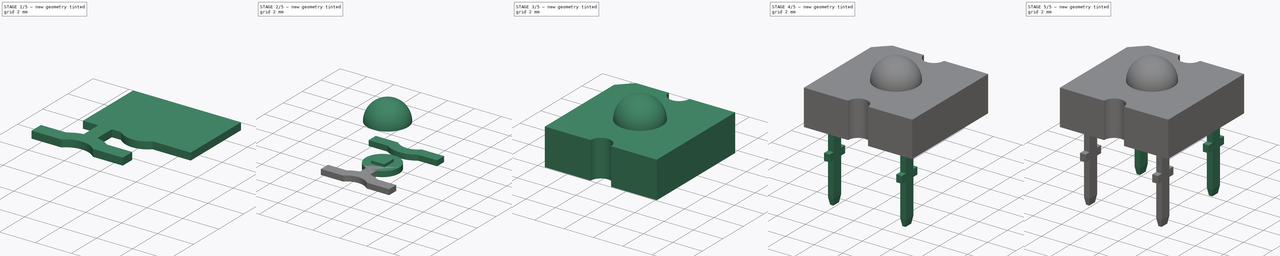
[diagram: build sequence overview — one tinted view per stage of 5, left to right]
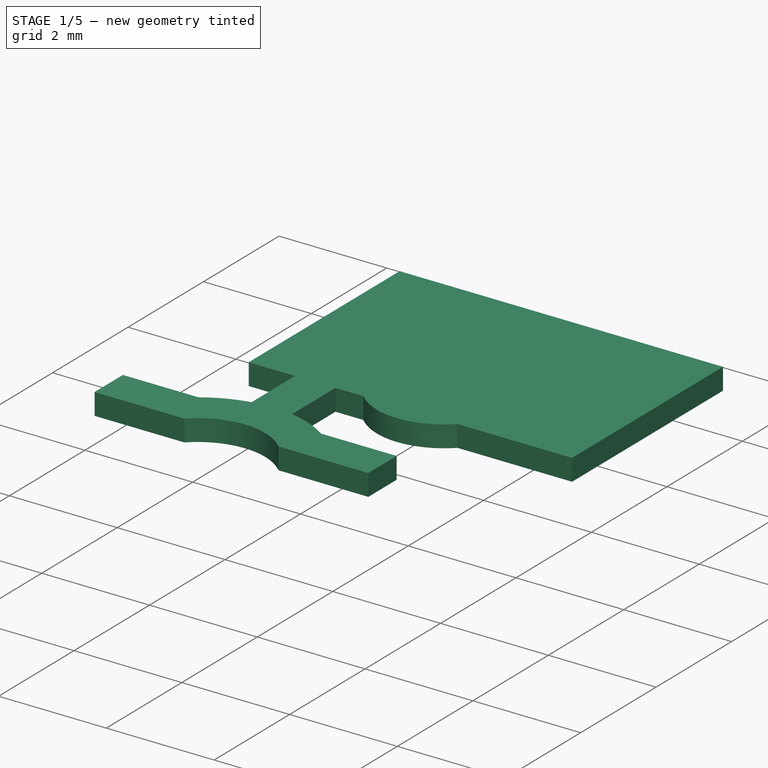
[diagram: stage 1 of 5 — iso view after this stage's code; geometry added in this stage tinted green]
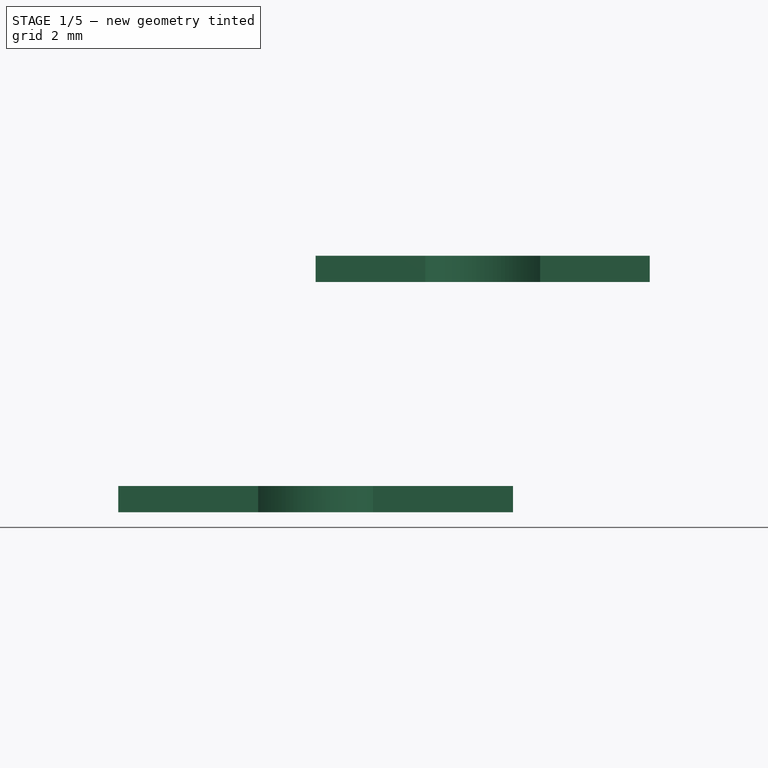
[diagram: stage 1 of 5 — front view after this stage's code; geometry added in this stage tinted green]
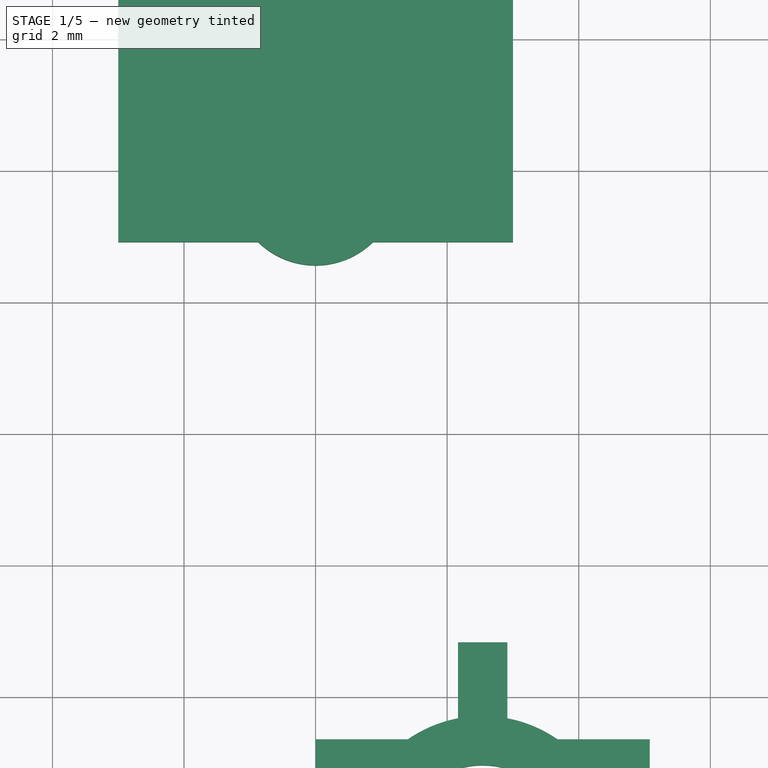
[diagram: stage 1 of 5 — top view after this stage's code; geometry added in this stage tinted green]
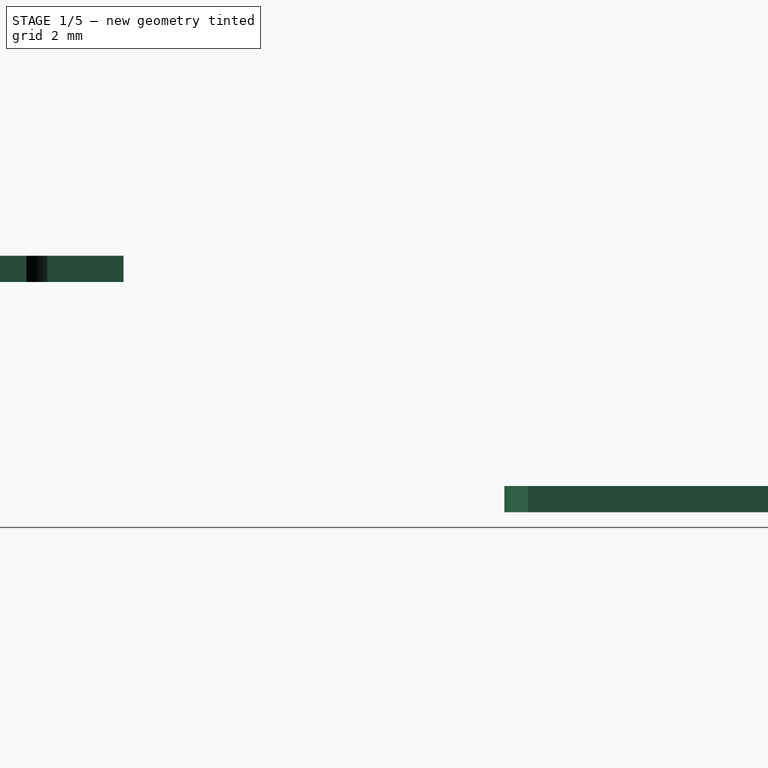
[diagram: stage 1 of 5 — right view after this stage's code; geometry added in this stage tinted green]
FCSTD DOCUMENT  (FreeCAD 0.16R6712 (Git))
Label: test
License: All rights reserved
LicenseURL: http://en.wikipedia.org/wiki/All_rights_reserved
objects: Part::Extrusion×12, Part::Cut×10, Part::MultiFuse×10, Part::Box×9, Part::Cylinder×7, Sketcher::SketchObject×4, PartDesign::Pad×4, Part::Part2DObjectPython×4, Part::Sphere×1, Part::Fuse×1
note: 66 computed .brp shape members not serialized (recipe doc carries the construction recipe); baked Part::Feature solids carry a one-line shape summary decoded from their .brp

FEATURE [Part::Cylinder] Cylinder004  label="C_cut"
  Angle = 360
  Height = 0.4
  Placement = pos=(0,3.81,0) rot=(0,0,1;0rad)
  Radius = 1.25
FEATURE [Part::Box] Box005  label="cut_cube001"
  Height = 0.4
  Length = 6
  Placement = pos=(-3,2.915,0) rot=(0,0,1;0rad)
  Width = 4
FEATURE [Part::Box] Box006  label="C_chip002"
  Height = 0.4
  Length = 5.08
  Placement = pos=(-2.54,2.165,0) rot=(0,0,1;0rad)
  Width = 0.75
FEATURE [Part::Cylinder] Cylinder005  label="C_cylinder001"
  Angle = 360
  Height = 0.4
  Placement = pos=(0,3.81,0) rot=(0,0,1;0rad)
  Radius = 2
FEATURE [Part::Cylinder] Cylinder006  label="C_cut001"
  Angle = 360
  Height = 0.4
  Placement = pos=(0,3.81,0) rot=(0,0,1;0rad)
  Radius = 1.25
FEATURE [Part::Cut] Cut007
  Base = -> Box006
  Tool = -> Cylinder006
FEATURE [Part::Cut] Cut008
  Base = -> Cylinder005
  Tool = -> Cylinder006
FEATURE [Part::Box] Box007  label="cut_cube002"
  Height = 0.4
  Length = 6
  Placement = pos=(-3,2.915,0) rot=(0,0,1;0rad)
  Width = 4
FEATURE [Part::Cut] Cut009
  Base = -> Cut008
  Tool = -> Box007
FEATURE [Part::MultiFuse] Fusion010  label="A_chip003"
  Placement = pos=(2.54,-2.54,3.5) rot=(0,0,1;3.14159rad)
  Shapes = -> [Cut007,Cut009]
FEATURE [Part::Box] Box008  label="A_chip_connect"
  Height = 0.4
  Length = 0.75
  Placement = pos=(2.165,-4.73,3.5) rot=(0,0,1;0rad)
  Width = 1.5
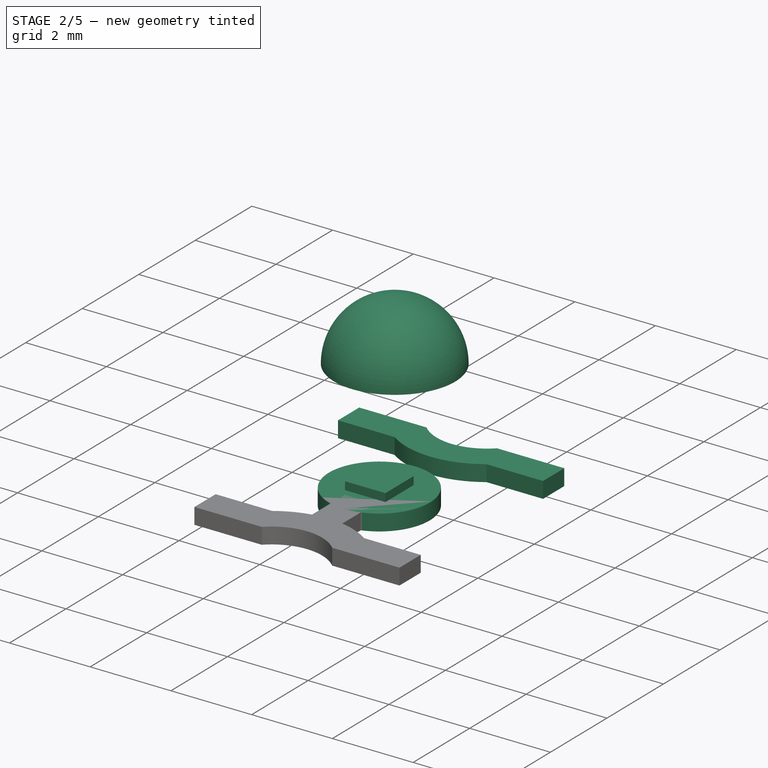
[diagram: stage 2 of 5 — iso view after this stage's code; geometry added in this stage tinted green]
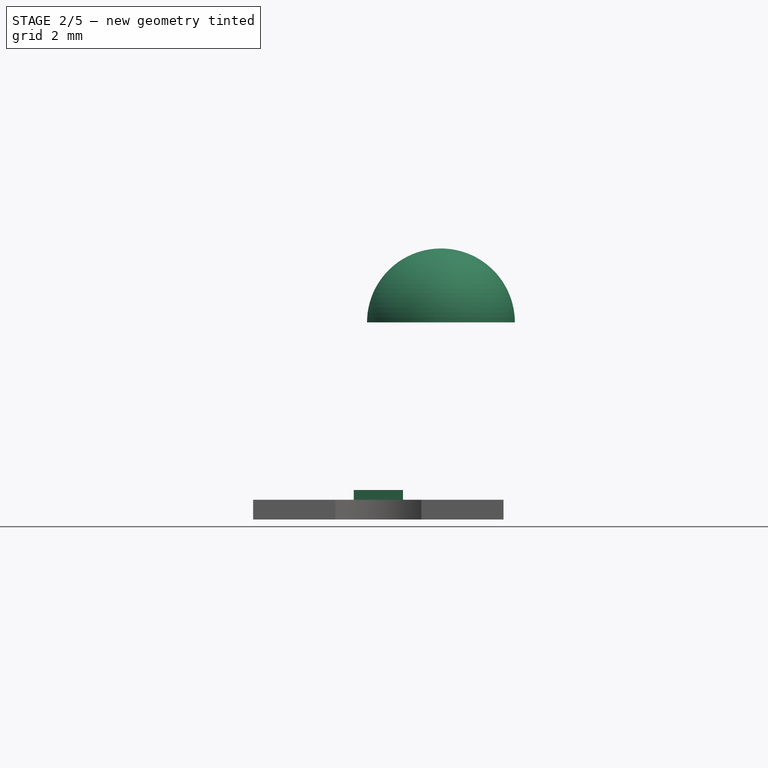
[diagram: stage 2 of 5 — front view after this stage's code; geometry added in this stage tinted green]
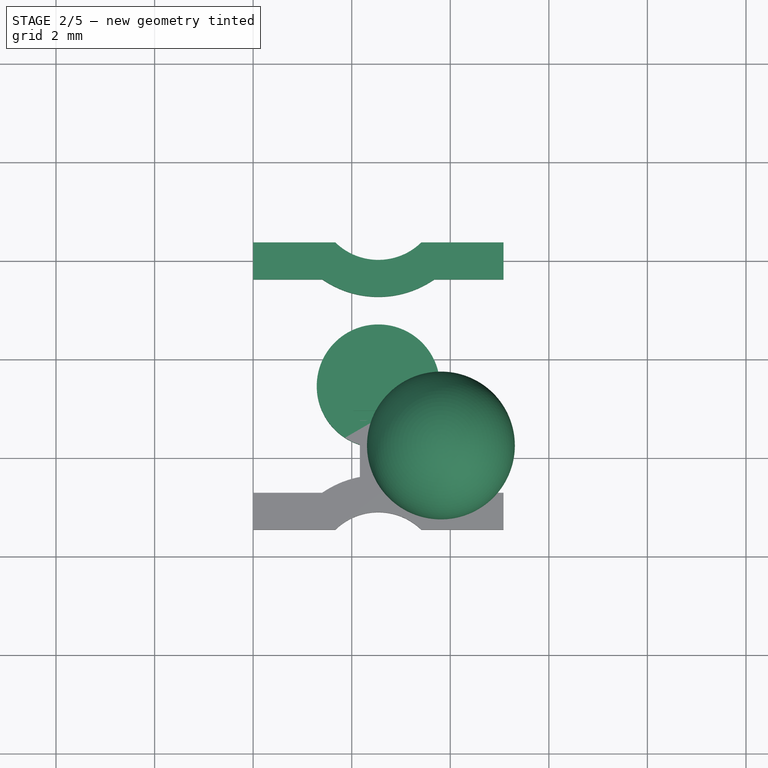
[diagram: stage 2 of 5 — top view after this stage's code; geometry added in this stage tinted green]
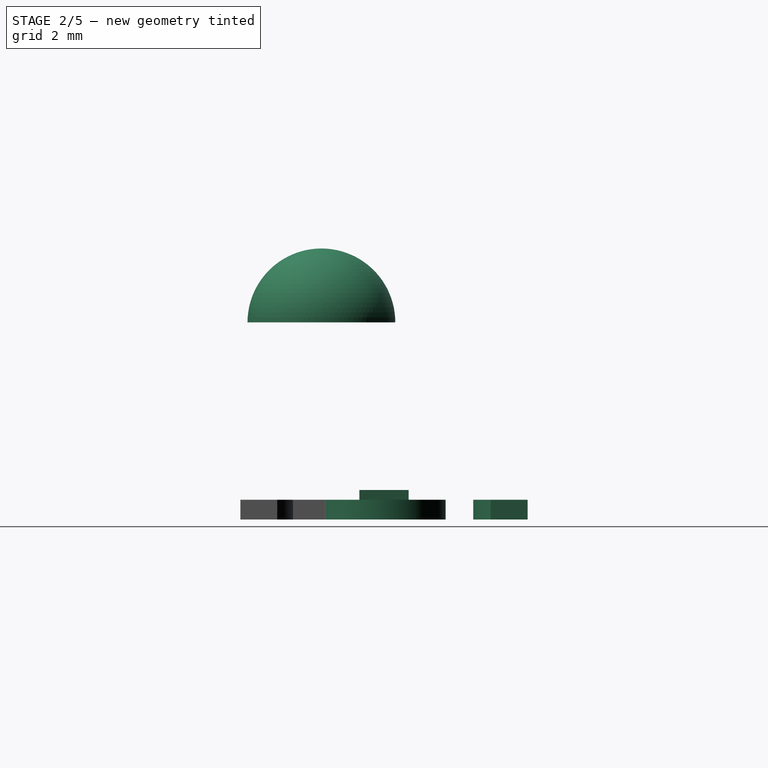
[diagram: stage 2 of 5 — right view after this stage's code; geometry added in this stage tinted green]
FEATURE [Part::Sphere] Sphere  label="LED_lens"
  Angle1 = -90
  Angle2 = 90
  Angle3 = 360
  Radius = 1.5
FEATURE [Part::Box] Box002  label="Lens_cut"
  Height = 4
  Length = 4
  Placement = pos=(-2,-2,-4) rot=(0,0,1;0rad)
  Width = 4
FEATURE [Part::Cut] Cut003  label="LED_lens001"
  Base = -> Sphere
  Placement = pos=(3.81,-3.81,7.5) rot=(0,0,1;0rad)
  Tool = -> Box002
FEATURE [Part::Cylinder] Cylinder002  label="chip_base"
  Angle = 360
  Height = 0.4
  Placement = pos=(2.54,-2.54,3.5) rot=(0,0,1;0rad)
  Radius = 1.25
FEATURE [Part::Box] Box003  label="LED_chip"
  Height = 0.2
  Length = 1
  Placement = pos=(2.04,-3.04,3.9) rot=(0,0,1;0rad)
  Width = 1
FEATURE [Part::Box] Box004  label="C_chip"
  Height = 0.4
  Length = 5.08
  Placement = pos=(-2.54,2.165,0) rot=(0,0,1;0rad)
  Width = 0.75
FEATURE [Part::Cylinder] Cylinder003  label="C_cylinder"
  Angle = 360
  Height = 0.4
  Placement = pos=(0,3.81,0) rot=(0,0,1;0rad)
  Radius = 2
FEATURE [Part::Cut] Cut004
  Base = -> Box004
  Tool = -> Cylinder004
FEATURE [Part::Cut] Cut005
  Base = -> Cylinder003
  Tool = -> Cylinder004
FEATURE [Part::Cut] Cut006
  Base = -> Cut005
  Tool = -> Box005
FEATURE [Part::MultiFuse] Fusion009  label="C_chip001"
  Placement = pos=(2.54,-2.54,3.5) rot=(0,0,1;0rad)
  Shapes = -> [Cut004,Cut006]
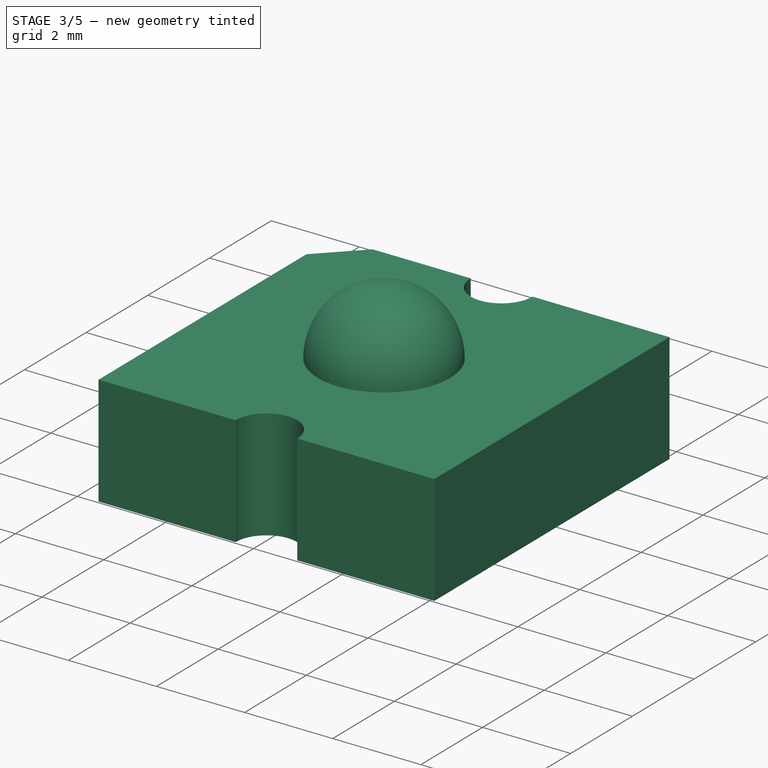
[diagram: stage 3 of 5 — iso view after this stage's code; geometry added in this stage tinted green]
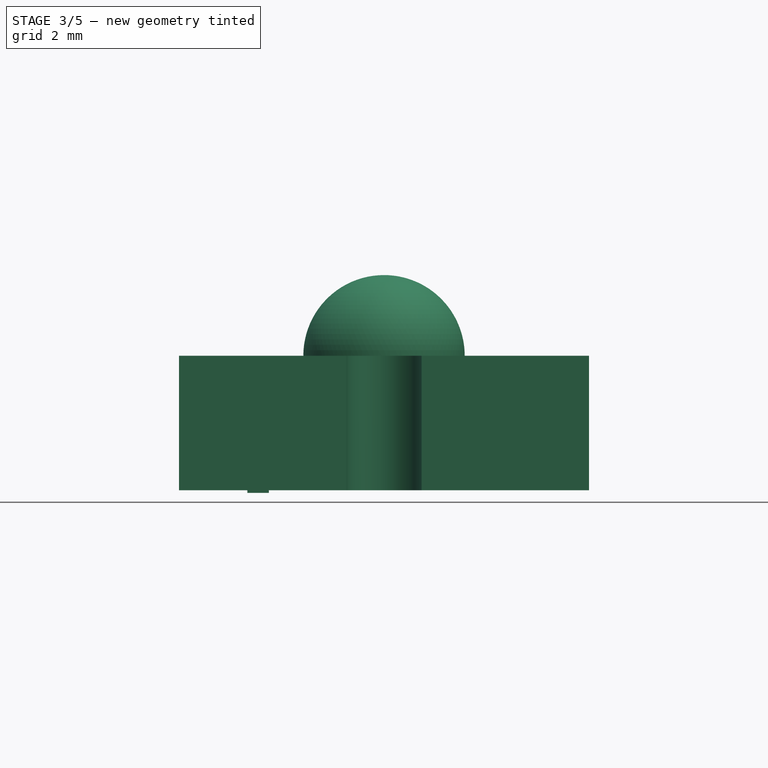
[diagram: stage 3 of 5 — front view after this stage's code; geometry added in this stage tinted green]
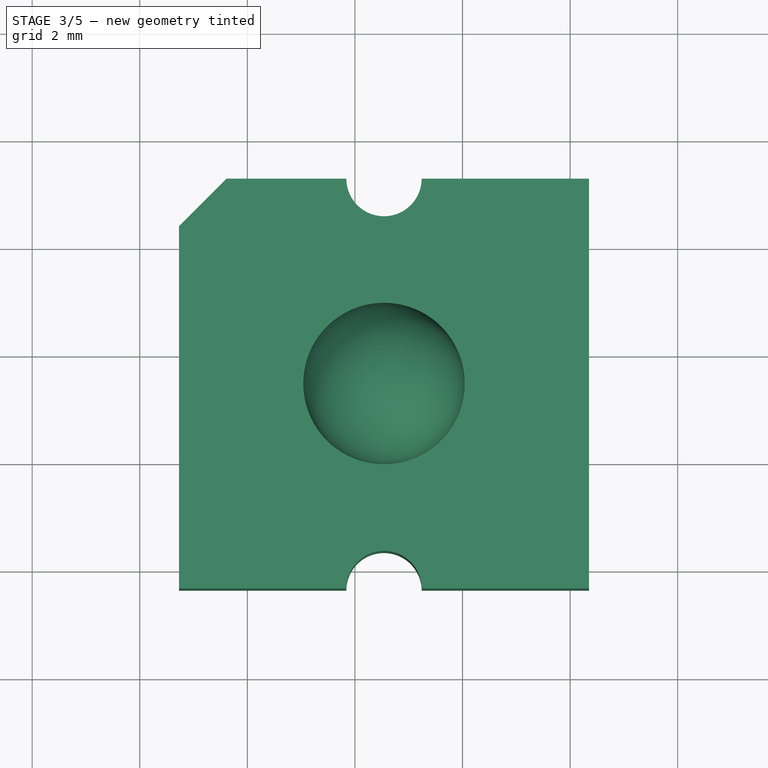
[diagram: stage 3 of 5 — top view after this stage's code; geometry added in this stage tinted green]
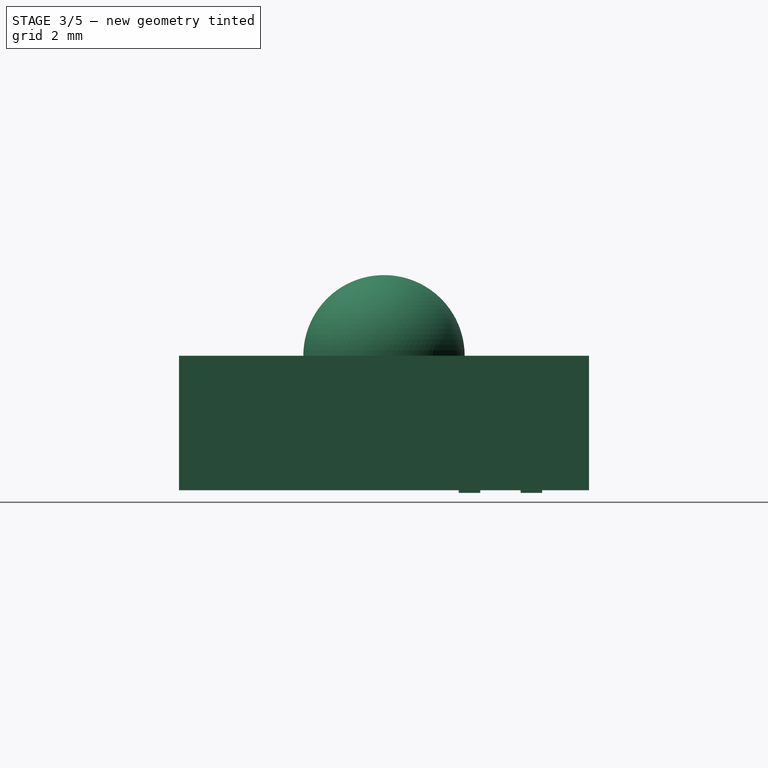
[diagram: stage 3 of 5 — right view after this stage's code; geometry added in this stage tinted green]
FEATURE [Part::Box] Box  label="LED_head"
  Height = 2.5
  Length = 7.62
  Width = 7.62
FEATURE [Part::Box] Box001  label="cut_cube"
  Height = 2.5
  Length = 1.25
  Placement = pos=(7.62,6.73612,0) rot=(0,0,1;0.785398rad)
  Width = 1.25
FEATURE [Part::Cut] Cut  label="Trim_cut"
  Base = -> Box
  Placement = pos=(7.62,-7.62,5) rot=(0,0,1;1.5708rad)
  Tool = -> Box001
FEATURE [Part::Part2DObjectPython] Rectangle003  # Draft 2D object (typed FeaturePython)
  ChamferSize = 0
  Columns = 1
  FilletRadius = 0
  Height = 0.5
  Length = 0.4
  MakeFace = true
  Placement = pos=(0,0,2.45) rot=(1,0,0;1.5708rad)
  Rows = 1
FEATURE [Part::Extrusion] Extrude010  label="Stopper_007"
  Base = -> Rectangle003
  Dir = (0,0.4,0)
  Solid = false
FEATURE [Part::Extrusion] Extrude011  label="Stopper_008"
  Base = -> Rectangle003
  Dir = (0,-0.4,0)
  Placement = pos=(0,-0.75,0) rot=(0,0,1;0rad)
  Solid = false
FEATURE [Part::Cylinder] Cylinder  label="Cut_LED_left"
  Angle = 360
  Height = 10
  Placement = pos=(3.81,0,0) rot=(0,0,1;0rad)
  Radius = 0.7
FEATURE [Part::Cylinder] Cylinder001  label="Cut_LED_right"
  Angle = 360
  Height = 10
  Placement = pos=(3.81,-7.62,0) rot=(0,0,1;0rad)
  Radius = 0.7
FEATURE [Part::Cut] Cut001
  Base = -> Cut
  Tool = -> Cylinder
FEATURE [Part::Cut] Cut002  label="LED_head001"
  Base = -> Cut001
  Tool = -> Cylinder001
FEATURE [Part::Fuse] Fusion008  label="LED_head002"
  Base = -> Cut002
  Placement = pos=(-1.27,1.27,-2.5) rot=(0,0,1;0rad)
  Tool = -> Cut003
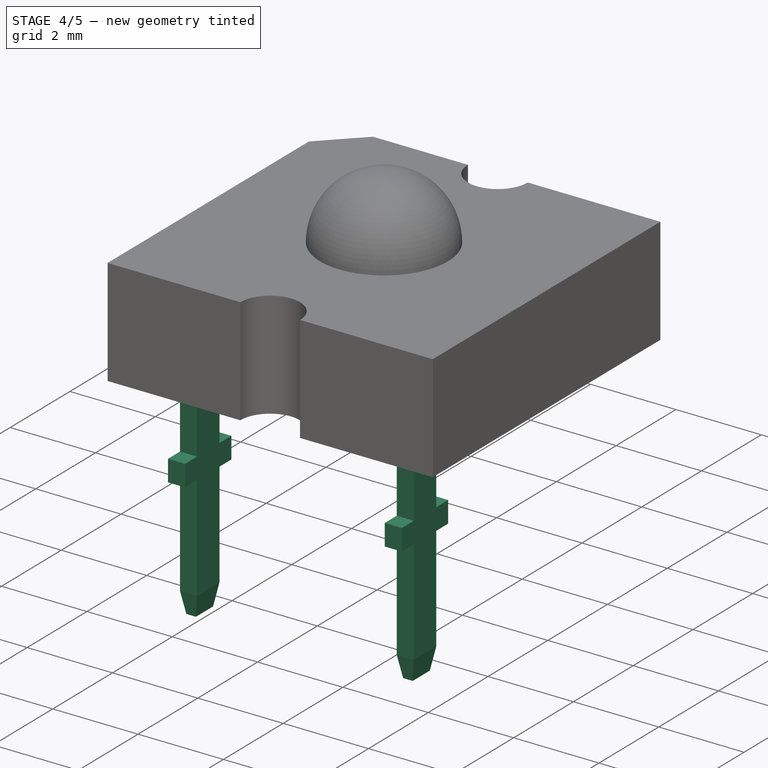
[diagram: stage 4 of 5 — iso view after this stage's code; geometry added in this stage tinted green]
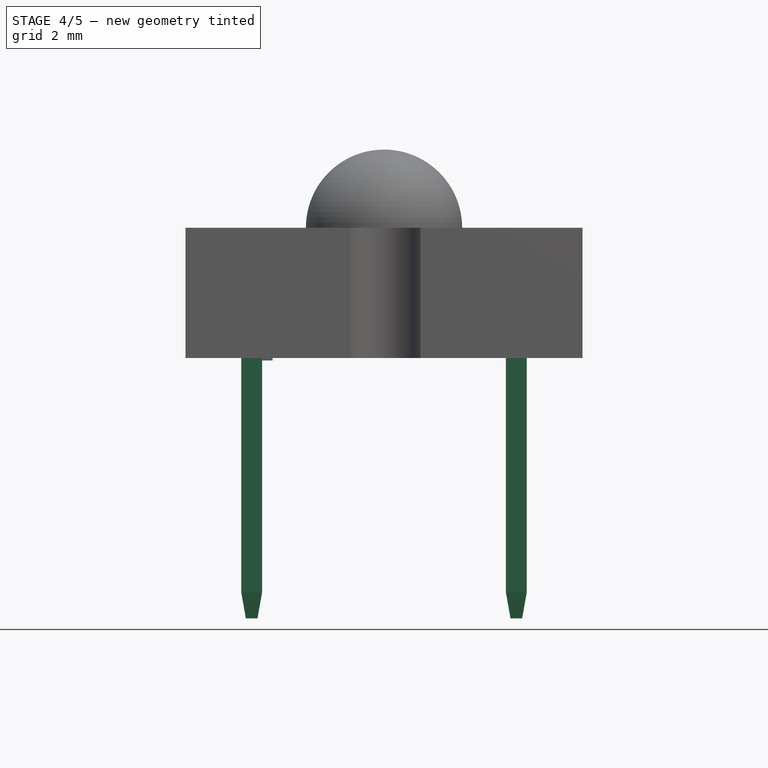
[diagram: stage 4 of 5 — front view after this stage's code; geometry added in this stage tinted green]
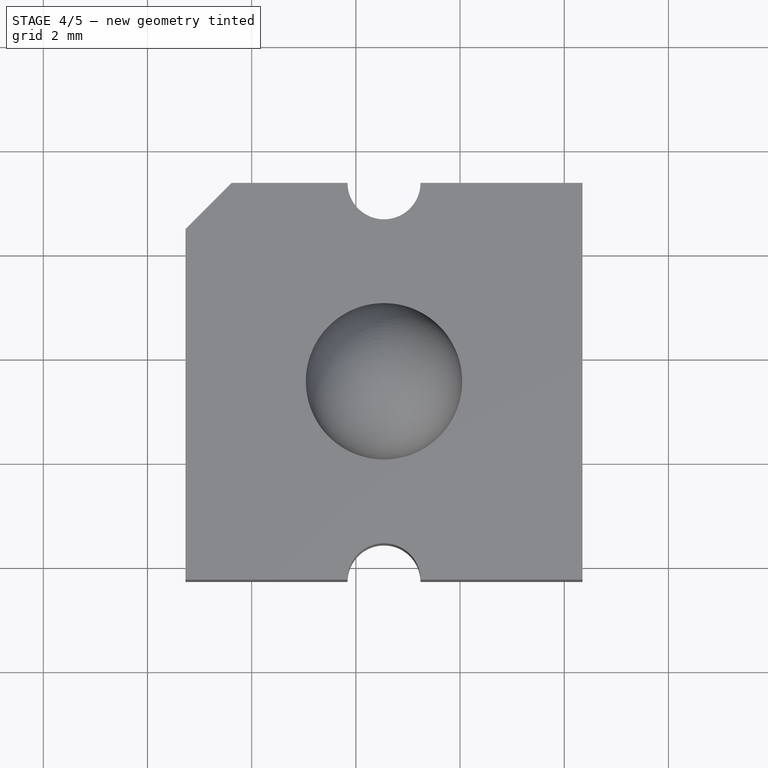
[diagram: stage 4 of 5 — top view after this stage's code; geometry added in this stage tinted green]
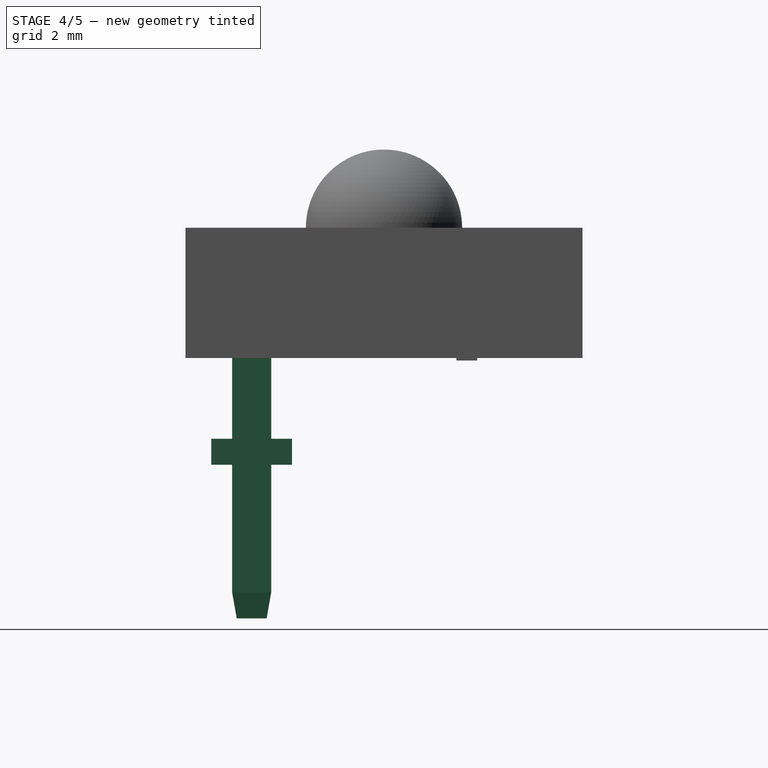
[diagram: stage 4 of 5 — right view after this stage's code; geometry added in this stage tinted green]
FEATURE [Part::Extrusion] Extrude005  label="Stopper_004"
  Base = -> Rectangle001
  Dir = (0,-0.4,0)
  Placement = pos=(0,-0.75,0) rot=(0,0,1;0rad)
  Solid = false
FEATURE [Sketcher::SketchObject] Sketch002
  sketch-geometry (4):
    g0: LineSegment StartX=0.4 StartY=0 StartZ=0 EndX=0 EndY=0 EndZ=0
    g1: LineSegment StartX=0 StartY=0 StartZ=0 EndX=0 EndY=-0.75 EndZ=0
    g2: LineSegment StartX=0 StartY=-0.75 StartZ=0 EndX=0.4 EndY=-0.75 EndZ=0
    g3: LineSegment StartX=0.4 StartY=-0.75 StartZ=0 EndX=0.4 EndY=0 EndZ=0
  constraints (10):
    c: Coincident(g0,g1)
    c: Coincident(g1,g2)
    c: Coincident(g2,g3)
    c: Coincident(g3,g0)
    c: Horizontal(g0)
    c: Horizontal(g2)
    c: Vertical(g1)
    c: Vertical(g3)
    c: Distance(g0) = 0.4
    c: Distance(g1) = 0.75
FEATURE [PartDesign::Pad] Pad002  label="Pad_base002"
  Length = 5.9
  Length2 = 100
  Sketch = -> Sketch002
  Type = 0
FEATURE [Part::Extrusion] Extrude006  label="Pad_foot002"
  Base = -> Sketch002
  Dir = (0,0,-0.5)
  Solid = true
  TaperAngle = -10
FEATURE [Part::MultiFuse] Fusion004  label="Pin_no_stopper002"
  Shapes = -> [Extrude006,Pad002]
FEATURE [Part::Part2DObjectPython] Rectangle002  # Draft 2D object (typed FeaturePython)
  ChamferSize = 0
  Columns = 1
  FilletRadius = 0
  Height = 0.5
  Length = 0.4
  MakeFace = true
  Placement = pos=(0,0,2.45) rot=(1,0,0;1.5708rad)
  Rows = 1
FEATURE [Part::Extrusion] Extrude007  label="Stopper_005"
  Base = -> Rectangle002
  Dir = (0,0.4,0)
  Solid = false
FEATURE [Part::Extrusion] Extrude008  label="Stopper_006"
  Base = -> Rectangle002
  Dir = (0,-0.4,0)
  Placement = pos=(0,-0.75,0) rot=(0,0,1;0rad)
  Solid = false
FEATURE [Part::MultiFuse] Fusion005  label="A_2"
  Placement = pos=(4.88,-4.705,-2) rot=(0,0,1;0rad)
  Shapes = -> [Extrude008,Extrude007,Fusion004]
FEATURE [Sketcher::SketchObject] Sketch003
  sketch-geometry (4):
    g0: LineSegment StartX=0.4 StartY=0 StartZ=0 EndX=0 EndY=0 EndZ=0
    g1: LineSegment StartX=0 StartY=0 StartZ=0 EndX=0 EndY=-0.75 EndZ=0
    g2: LineSegment StartX=0 StartY=-0.75 StartZ=0 EndX=0.4 EndY=-0.75 EndZ=0
    g3: LineSegment StartX=0.4 StartY=-0.75 StartZ=0 EndX=0.4 EndY=0 EndZ=0
  constraints (10):
    c: Coincident(g0,g1)
    c: Coincident(g1,g2)
    c: Coincident(g2,g3)
    c: Coincident(g3,g0)
    c: Horizontal(g0)
    c: Horizontal(g2)
    c: Vertical(g1)
    c: Vertical(g3)
    c: Distance(g0) = 0.4
    c: Distance(g1) = 0.75
FEATURE [PartDesign::Pad] Pad003  label="Pad_base003"
  Length = 5.9
  Length2 = 100
  Sketch = -> Sketch003
  Type = 0
FEATURE [Part::Extrusion] Extrude009  label="Pad_foot003"
  Base = -> Sketch003
  Dir = (0,0,-0.5)
  Solid = true
  TaperAngle = -10
FEATURE [Part::MultiFuse] Fusion006  label="Pin_no_stopper003"
  Shapes = -> [Extrude009,Pad003]
FEATURE [Part::MultiFuse] Fusion007  label="A_1"
  Placement = pos=(-0.2,-4.705,-2) rot=(0,0,1;0rad)
  Shapes = -> [Extrude011,Extrude010,Fusion006]
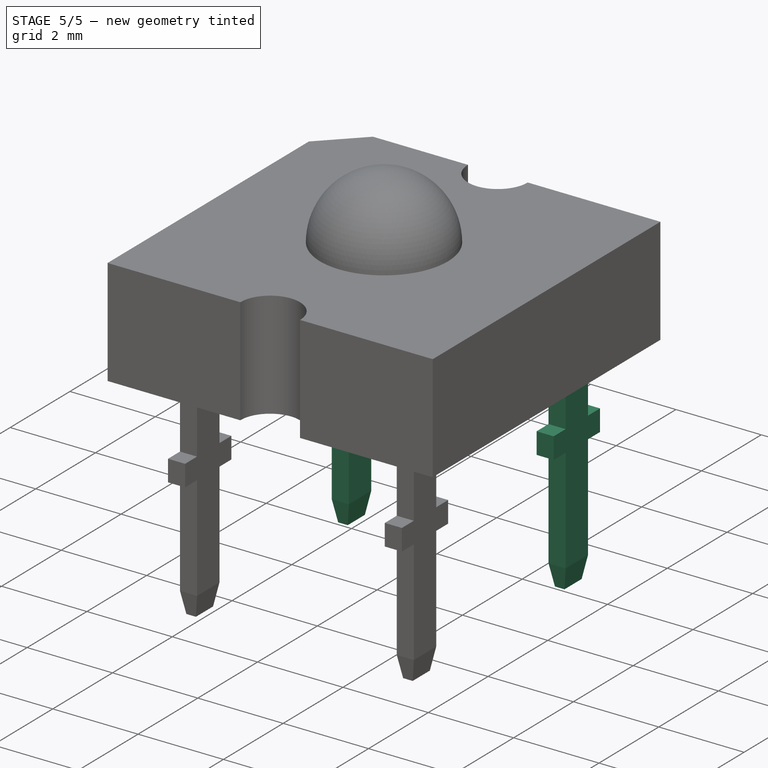
[diagram: stage 5 of 5 — iso view after this stage's code; geometry added in this stage tinted green]
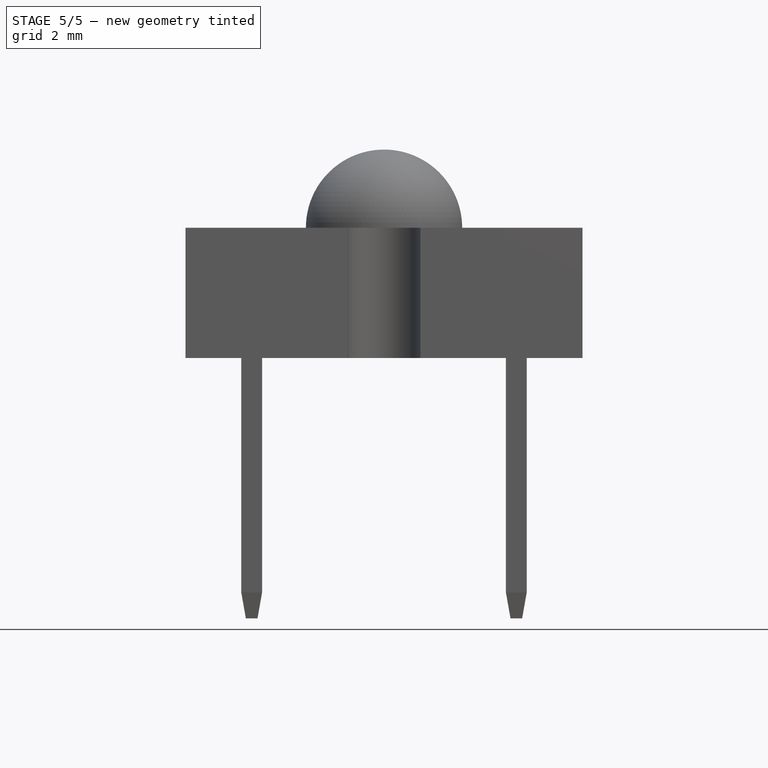
[diagram: stage 5 of 5 — front view after this stage's code; geometry added in this stage tinted green]
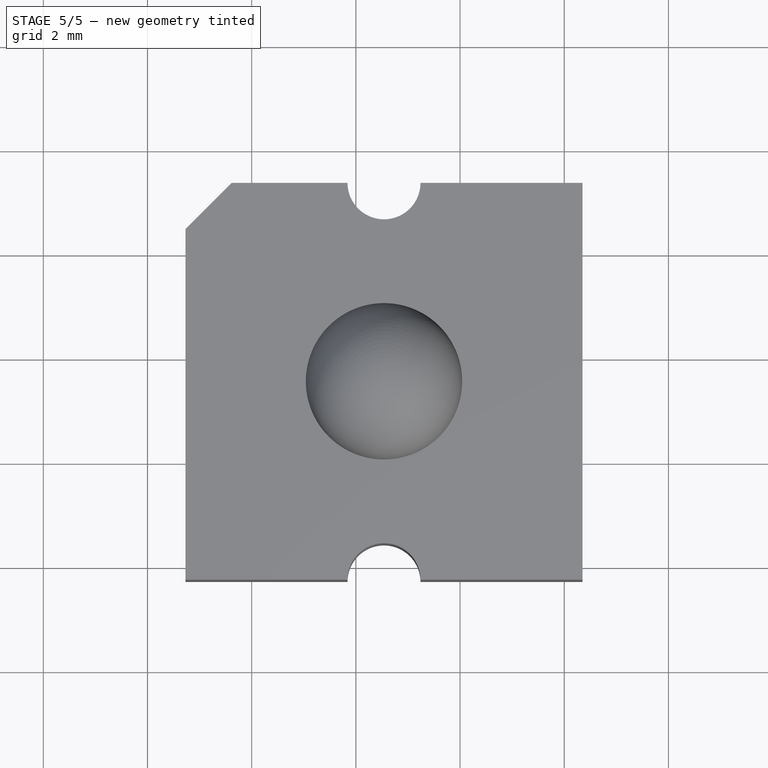
[diagram: stage 5 of 5 — top view after this stage's code; geometry added in this stage tinted green]
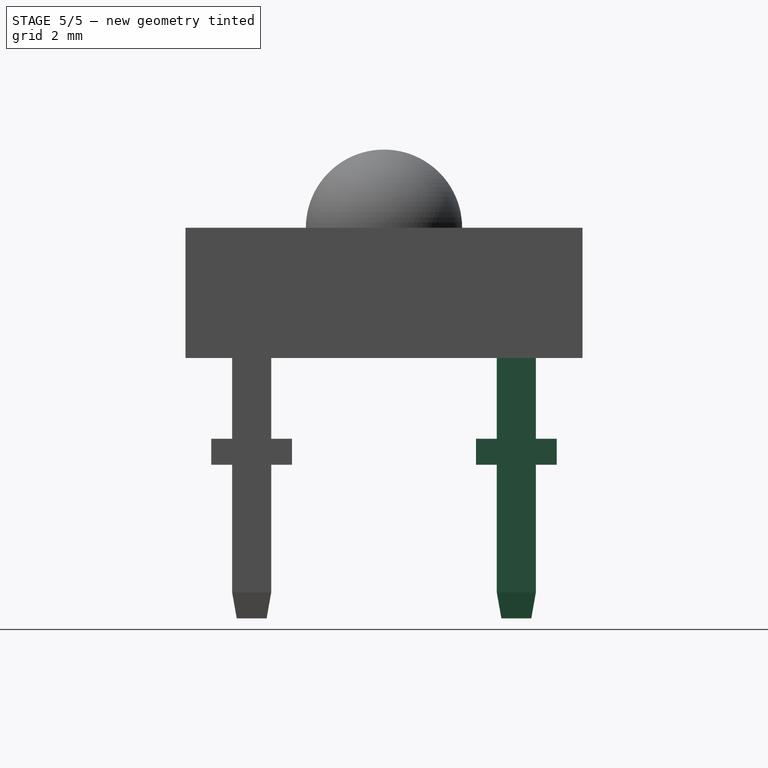
[diagram: stage 5 of 5 — right view after this stage's code; geometry added in this stage tinted green]
FEATURE [Sketcher::SketchObject] Sketch
  sketch-geometry (4):
    g0: LineSegment StartX=0.4 StartY=0 StartZ=0 EndX=0 EndY=0 EndZ=0
    g1: LineSegment StartX=0 StartY=0 StartZ=0 EndX=0 EndY=-0.75 EndZ=0
    g2: LineSegment StartX=0 StartY=-0.75 StartZ=0 EndX=0.4 EndY=-0.75 EndZ=0
    g3: LineSegment StartX=0.4 StartY=-0.75 StartZ=0 EndX=0.4 EndY=0 EndZ=0
  constraints (10):
    c: Coincident(g0,g1)
    c: Coincident(g1,g2)
    c: Coincident(g2,g3)
    c: Coincident(g3,g0)
    c: Horizontal(g0)
    c: Horizontal(g2)
    c: Vertical(g1)
    c: Vertical(g3)
    c: Distance(g0) = 0.4
    c: Distance(g1) = 0.75
FEATURE [PartDesign::Pad] Pad  label="Pad_base"
  Length = 5.9
  Length2 = 100
  Sketch = -> Sketch
  Type = 0
FEATURE [Part::Extrusion] Extrude  label="Pad_foot"
  Base = -> Sketch
  Dir = (0,0,-0.5)
  Solid = true
  TaperAngle = -10
FEATURE [Part::MultiFuse] Fusion  label="Pin_no_stopper"
  Shapes = -> [Extrude,Pad]
FEATURE [Part::Part2DObjectPython] Rectangle  # Draft 2D object (typed FeaturePython)
  ChamferSize = 0
  Columns = 1
  FilletRadius = 0
  Height = 0.5
  Length = 0.4
  MakeFace = true
  Placement = pos=(0,0,2.45) rot=(1,0,0;1.5708rad)
  Rows = 1
FEATURE [Part::Extrusion] Extrude001  label="Stopper_1"
  Base = -> Rectangle
  Dir = (0,0.4,0)
  Solid = false
FEATURE [Part::Extrusion] Extrude002  label="Stopper_2"
  Base = -> Rectangle
  Dir = (0,-0.4,0)
  Placement = pos=(0,-0.75,0) rot=(0,0,1;0rad)
  Solid = false
FEATURE [Part::MultiFuse] Fusion001  label="C_1"
  Placement = pos=(-0.2,0.375,-2) rot=(0,0,1;0rad)
  Shapes = -> [Extrude002,Extrude001,Fusion]
FEATURE [Sketcher::SketchObject] Sketch001
  sketch-geometry (4):
    g0: LineSegment StartX=0.4 StartY=0 StartZ=0 EndX=0 EndY=0 EndZ=0
    g1: LineSegment StartX=0 StartY=0 StartZ=0 EndX=0 EndY=-0.75 EndZ=0
    g2: LineSegment StartX=0 StartY=-0.75 StartZ=0 EndX=0.4 EndY=-0.75 EndZ=0
    g3: LineSegment StartX=0.4 StartY=-0.75 StartZ=0 EndX=0.4 EndY=0 EndZ=0
  constraints (10):
    c: Coincident(g0,g1)
    c: Coincident(g1,g2)
    c: Coincident(g2,g3)
    c: Coincident(g3,g0)
    c: Horizontal(g0)
    c: Horizontal(g2)
    c: Vertical(g1)
    c: Vertical(g3)
    c: Distance(g0) = 0.4
    c: Distance(g1) = 0.75
FEATURE [PartDesign::Pad] Pad001  label="Pad_base001"
  Length = 5.9
  Length2 = 100
  Sketch = -> Sketch001
  Type = 0
FEATURE [Part::Extrusion] Extrude003  label="Pad_foot001"
  Base = -> Sketch001
  Dir = (0,0,-0.5)
  Solid = true
  TaperAngle = -10
FEATURE [Part::MultiFuse] Fusion002  label="Pin_no_stopper001"
  Shapes = -> [Extrude003,Pad001]
FEATURE [Part::Part2DObjectPython] Rectangle001  # Draft 2D object (typed FeaturePython)
  ChamferSize = 0
  Columns = 1
  FilletRadius = 0
  Height = 0.5
  Length = 0.4
  MakeFace = true
  Placement = pos=(0,0,2.45) rot=(1,0,0;1.5708rad)
  Rows = 1
FEATURE [Part::Extrusion] Extrude004  label="Stopper_003"
  Base = -> Rectangle001
  Dir = (0,0.4,0)
  Solid = false
FEATURE [Part::MultiFuse] Fusion003  label="C_2"
  Placement = pos=(4.88,0.375,-2) rot=(0,0,1;0rad)
  Shapes = -> [Extrude005,Extrude004,Fusion002]
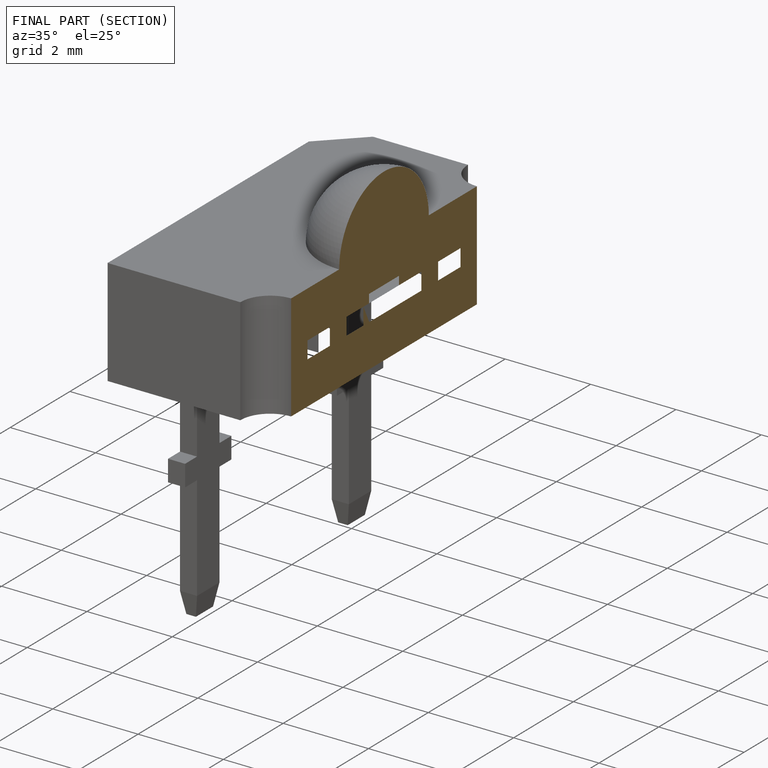
[diagram: finished part — half-section view (interior)]
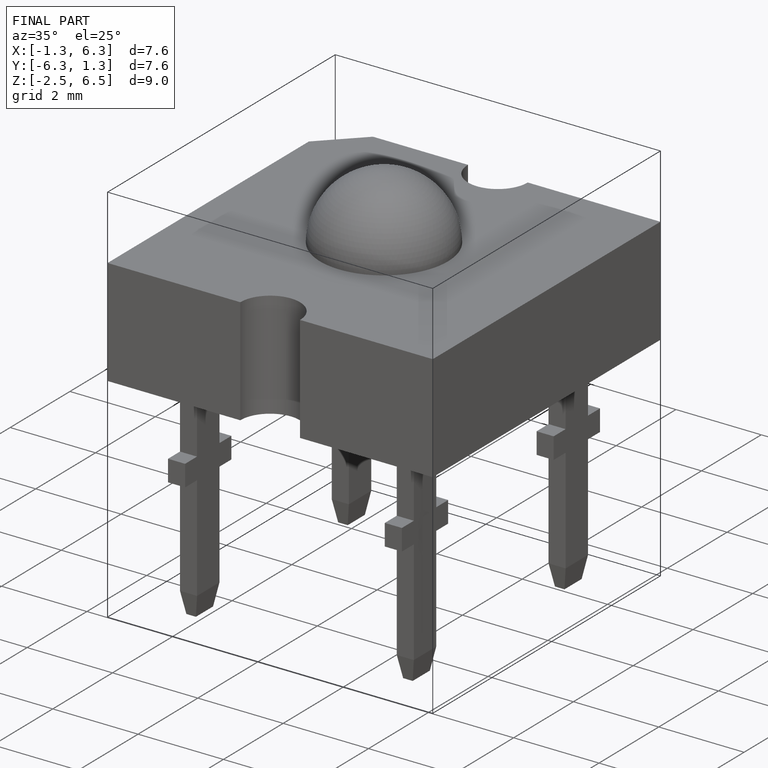
[diagram: finished part — iso view with bounding-box wireframe]
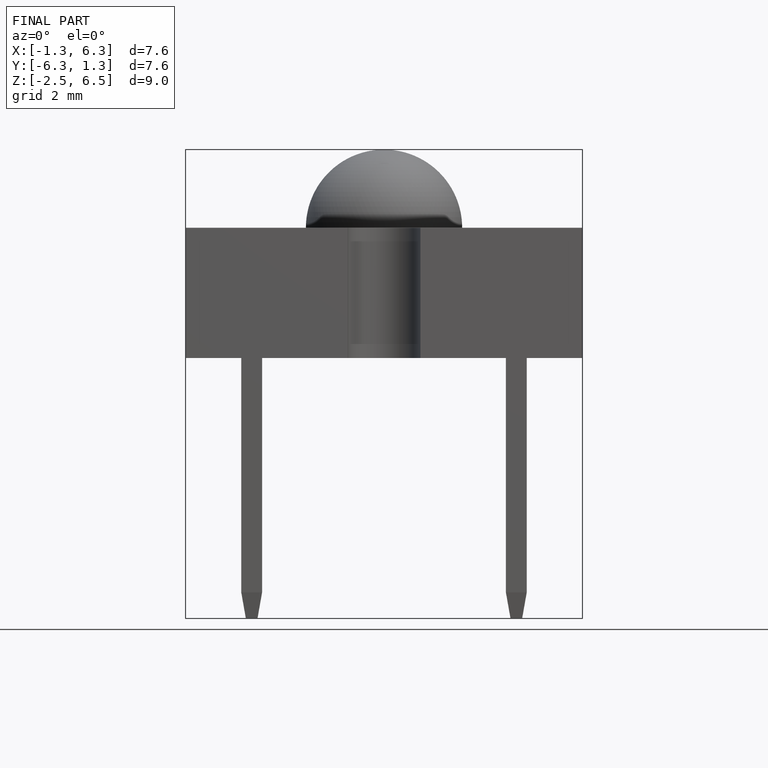
[diagram: finished part — front view with bounding-box wireframe]
